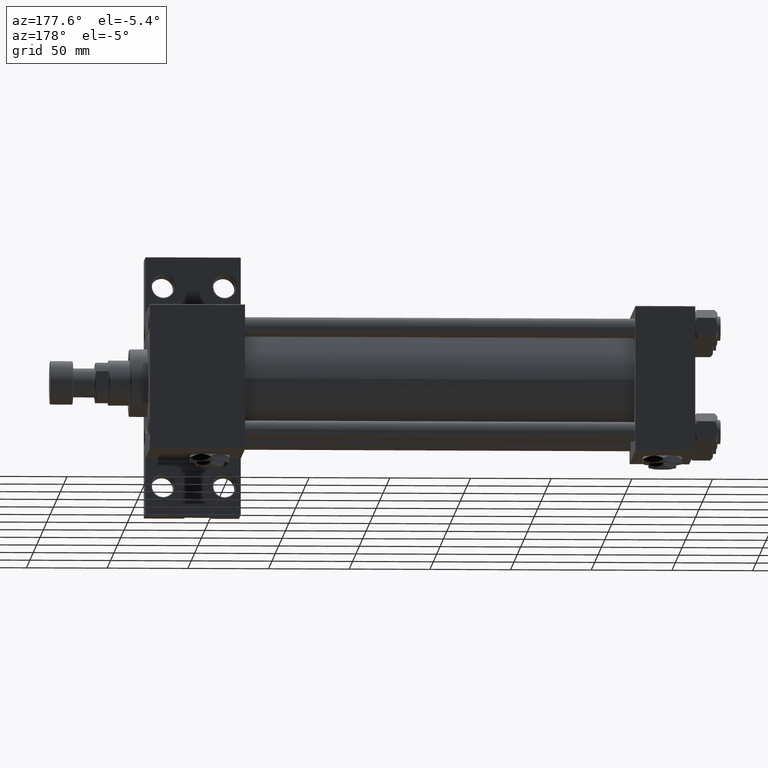
[diagram: clean part render]
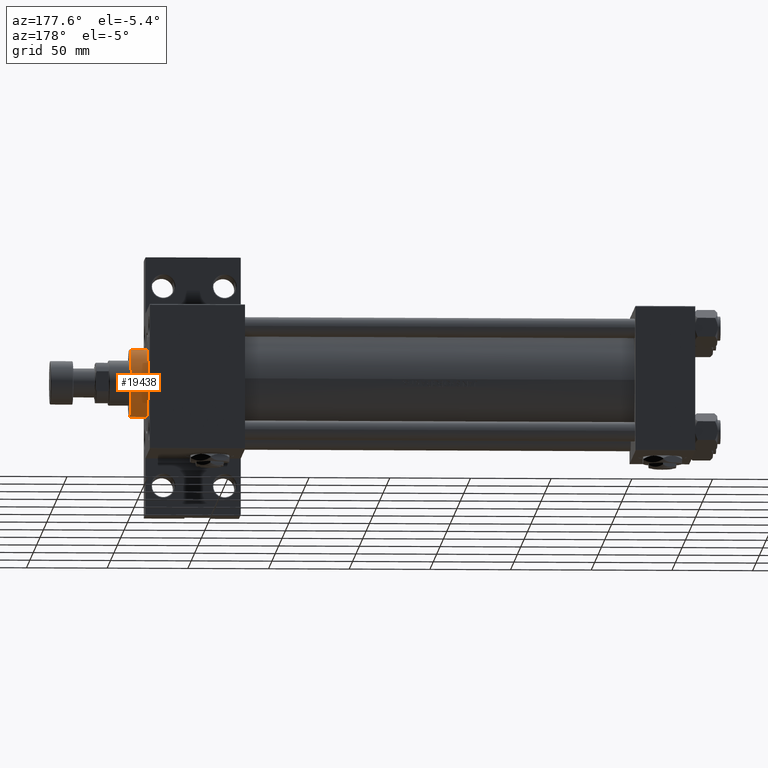
[diagram: same view with one face highlighted and labeled with its STEP entity id]
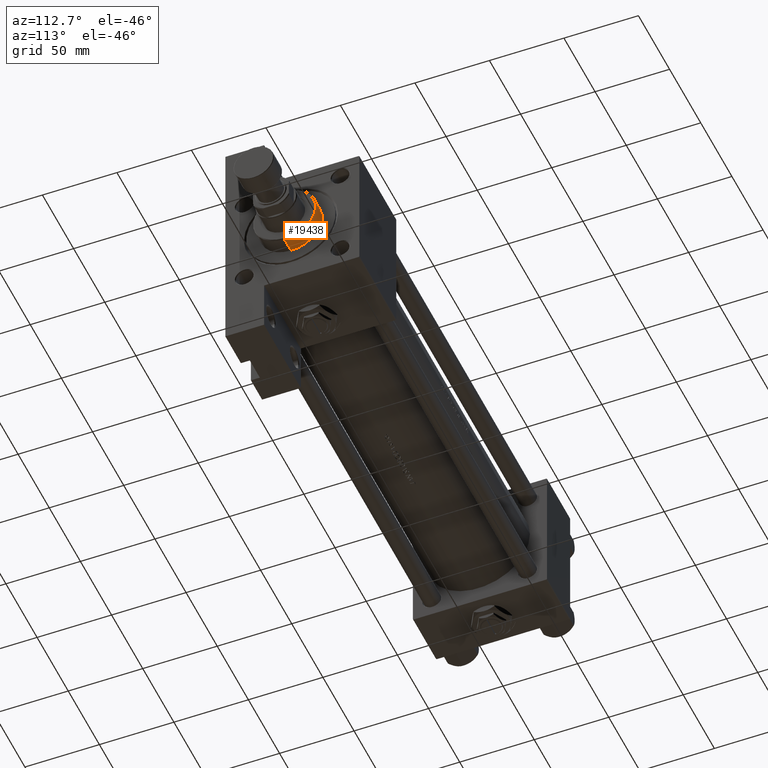
[diagram: same view with one face highlighted and labeled with its STEP entity id]
A machine part, auxiliary view. The second image highlights one B-rep face of the part: STEP entity #19438.
A second angle (auxiliary view) of the same face is appended — the face is thin or edge-on in the first view.
In plain terms, the highlighted cylindrical surface (edge-blend (fillet) strip) has radius 21 mm, axis along (-1, 0, 0).
Its self-contained STEP definition (entity closure, byte-faithful):
#2857 = FACE_OUTER_BOUND ( 'NONE', #3936, .T. ) ;
#3936 = EDGE_LOOP ( 'NONE', ( #30121, #4148, #29110, #39189 ) ) ;
#4148 = ORIENTED_EDGE ( 'NONE', *, *, #30547, .T. ) ;
#4731 = CARTESIAN_POINT ( 'NONE',  ( 21.00000000000000000, 2.571758278209441661E-15, 39.69999999999999574 ) ) ;
#4867 = CIRCLE ( 'NONE', #36492, 21.00000000000000000 ) ;
#5832 = EDGE_CURVE ( 'NONE', #15473, #14938, #12337, .T. ) ;
#6489 = VECTOR ( 'NONE', #41365, 1000.000000000000000 ) ;
#7663 = CARTESIAN_POINT ( 'NONE',  ( 21.00000000000000000, 2.571758278209441661E-15, 28.69999999999999929 ) ) ;
#10046 = AXIS2_PLACEMENT_3D ( 'NONE', #37973, #34164, #42033 ) ;
#12337 = LINE ( 'NONE', #4731, #43563 ) ;
#12991 = DIRECTION ( 'NONE',  ( 1.000000000000000000, 0.000000000000000000, 0.000000000000000000 ) ) ;
#14938 = VERTEX_POINT ( 'NONE', #7663 ) ;
#15256 = DIRECTION ( 'NONE',  ( -0.000000000000000000, -0.000000000000000000, -1.000000000000000000 ) ) ;
#15473 = VERTEX_POINT ( 'NONE', #43151 ) ;
#16795 = CARTESIAN_POINT ( 'NONE',  ( 0.000000000000000000, 0.000000000000000000, 28.69999999999999929 ) ) ;
#17086 = VERTEX_POINT ( 'NONE', #38299 ) ;
#18558 = CYLINDRICAL_SURFACE ( 'NONE', #41380, 21.00000000000000000 ) ;
#19438 = ADVANCED_FACE ( 'NONE', ( #2857 ), #18558, .T. ) ;
#21540 = LINE ( 'NONE', #41109, #6489 ) ;
#22129 = DIRECTION ( 'NONE',  ( -1.000000000000000000, 0.000000000000000000, 0.000000000000000000 ) ) ;
#29110 = ORIENTED_EDGE ( 'NONE', *, *, #45467, .T. ) ;
#30121 = ORIENTED_EDGE ( 'NONE', *, *, #5832, .F. ) ;
#30547 = EDGE_CURVE ( 'NONE', #15473, #45406, #41659, .T. ) ;
#34164 = DIRECTION ( 'NONE',  ( 0.000000000000000000, 0.000000000000000000, -1.000000000000000000 ) ) ;
#35705 = DIRECTION ( 'NONE',  ( -0.000000000000000000, -0.000000000000000000, -1.000000000000000000 ) ) ;
#36492 = AXIS2_PLACEMENT_3D ( 'NONE', #16795, #47776, #12991 ) ;
#37553 = CARTESIAN_POINT ( 'NONE',  ( -21.00000000000000000, 0.000000000000000000, 39.19999999999999574 ) ) ;
#37973 = CARTESIAN_POINT ( 'NONE',  ( 0.000000000000000000, 0.000000000000000000, 39.19999999999999574 ) ) ;
#38299 = CARTESIAN_POINT ( 'NONE',  ( -21.00000000000000000, 0.000000000000000000, 28.69999999999999929 ) ) ;
#39189 = ORIENTED_EDGE ( 'NONE', *, *, #41643, .T. ) ;
#41109 = CARTESIAN_POINT ( 'NONE',  ( -21.00000000000000000, 0.000000000000000000, 39.69999999999999574 ) ) ;
#41365 = DIRECTION ( 'NONE',  ( -0.000000000000000000, -0.000000000000000000, -1.000000000000000000 ) ) ;
#41380 = AXIS2_PLACEMENT_3D ( 'NONE', #50048, #15256, #22129 ) ;
#41643 = EDGE_CURVE ( 'NONE', #17086, #14938, #4867, .T. ) ;
#41659 = CIRCLE ( 'NONE', #10046, 21.00000000000000000 ) ;
#42033 = DIRECTION ( 'NONE',  ( 1.000000000000000000, 0.000000000000000000, 0.000000000000000000 ) ) ;
#43151 = CARTESIAN_POINT ( 'NONE',  ( 21.00000000000000000, 2.571758278209441661E-15, 39.19999999999999574 ) ) ;
#43563 = VECTOR ( 'NONE', #35705, 1000.000000000000000 ) ;
#45406 = VERTEX_POINT ( 'NONE', #37553 ) ;
#45467 = EDGE_CURVE ( 'NONE', #45406, #17086, #21540, .T. ) ;
#47776 = DIRECTION ( 'NONE',  ( 0.000000000000000000, 0.000000000000000000, 1.000000000000000000 ) ) ;
#50048 = CARTESIAN_POINT ( 'NONE',  ( 0.000000000000000000, 0.000000000000000000, 39.69999999999999574 ) ) ;